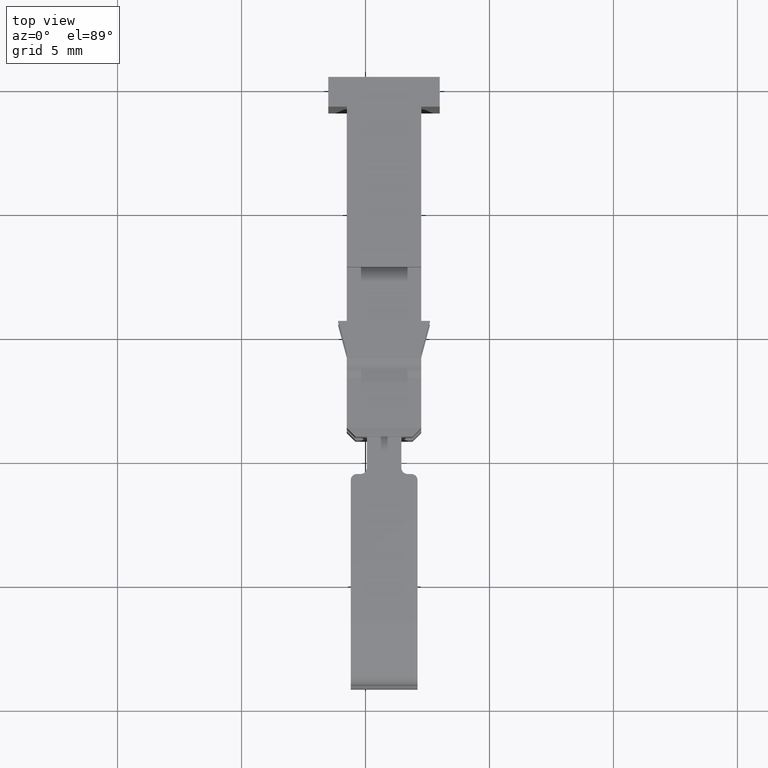
[diagram: clean part render]
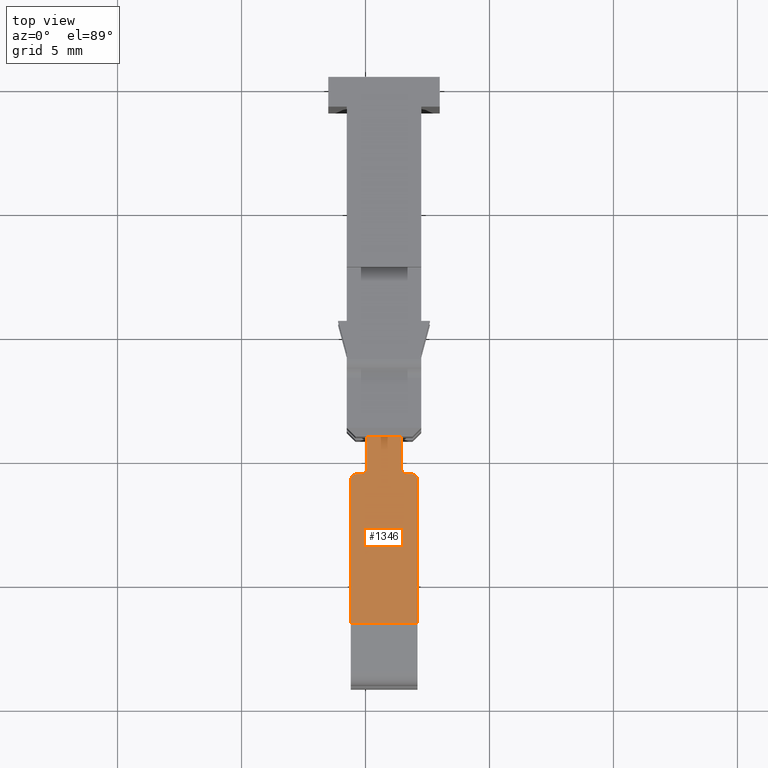
[diagram: same view with one face highlighted and labeled with its STEP entity id]
A machine part, top view. The second image highlights one B-rep face of the part: STEP entity #1346.
In plain terms, the highlighted planar face has unit normal (0, 0, -1).
Its self-contained STEP definition (entity closure, byte-faithful):
#508 = PLANE ( 'NONE',  #1826 ) ;
#550 = FACE_OUTER_BOUND ( 'NONE', #2169, .T. ) ;
#567 = CARTESIAN_POINT ( 'NONE',  ( 110.0552529172779500, 248.6101602476015000, 170.7398226793859800 ) ) ;
#589 = DIRECTION ( 'NONE',  ( 7.193572994223691600E-015, 1.504573015594193100E-014, -1.000000000000000000 ) ) ;
#590 = DIRECTION ( 'NONE',  ( 0.0000000000000000000, 1.000000000000000000, 1.504573015594193100E-014 ) ) ;
#910 = CARTESIAN_POINT ( 'NONE',  ( 111.4452529172782500, 244.5815789080036500, 170.7398226793859200 ) ) ;
#927 = CARTESIAN_POINT ( 'NONE',  ( 109.8052529172787800, 244.3315789080035100, 170.7398226793859200 ) ) ;
#931 = CARTESIAN_POINT ( 'NONE',  ( 111.6952529172784100, 244.3315789080036500, 170.7398226793859200 ) ) ;
#932 = CARTESIAN_POINT ( 'NONE',  ( 109.4024523974269600, 238.3134866759716000, 170.7398226793860100 ) ) ;
#935 = CARTESIAN_POINT ( 'NONE',  ( 111.4452529172780700, 245.8315789080019700, 170.7398226793859200 ) ) ;
#939 = CARTESIAN_POINT ( 'NONE',  ( 109.6524523974264700, 244.3315789080035100, 170.7398226793859500 ) ) ;
#942 = CARTESIAN_POINT ( 'NONE',  ( 110.0552529172784100, 245.8315789080019200, 170.7398226793859200 ) ) ;
#944 = CARTESIAN_POINT ( 'NONE',  ( 111.8480534371294700, 244.3315789080036500, 170.7398226793859200 ) ) ;
#945 = CARTESIAN_POINT ( 'NONE',  ( 112.0980534371292800, 238.3134866759713500, 170.7398226793860100 ) ) ;
#947 = CARTESIAN_POINT ( 'NONE',  ( 110.0552529172787200, 244.5815789080035100, 170.7398226793859200 ) ) ;
#949 = CARTESIAN_POINT ( 'NONE',  ( 109.4024523974264700, 244.0815789080034800, 170.7398226793859800 ) ) ;
#955 = CARTESIAN_POINT ( 'NONE',  ( 112.0980534371294700, 244.0815789080036500, 170.7398226793859200 ) ) ;
#1031 = LINE ( 'NONE', #1071, #1588 ) ;
#1053 = DIRECTION ( 'NONE',  ( 0.0000000000000000000, 1.000000000000000000, 1.504573015594193100E-014 ) ) ;
#1071 = CARTESIAN_POINT ( 'NONE',  ( 110.0552529172786400, 248.6101602476015000, 170.7398226793859800 ) ) ;
#1089 = EDGE_CURVE ( 'NONE', #2567, #2569, #1500, .T. ) ;
#1090 = EDGE_CURVE ( 'NONE', #2553, #2580, #1503, .T. ) ;
#1103 = EDGE_CURVE ( 'NONE', #2575, #2543, #1541, .T. ) ;
#1108 = EDGE_CURVE ( 'NONE', #2572, #2580, #2351, .T. ) ;
#1111 = EDGE_CURVE ( 'NONE', #2574, #2572, #2359, .T. ) ;
#1112 = EDGE_CURVE ( 'NONE', #2569, #2553, #2383, .T. ) ;
#1113 = EDGE_CURVE ( 'NONE', #2543, #2547, #2353, .T. ) ;
#1127 = EDGE_CURVE ( 'NONE', #2548, #2546, #2396, .T. ) ;
#1133 = EDGE_CURVE ( 'NONE', #2547, #2549, #1528, .T. ) ;
#1135 = EDGE_CURVE ( 'NONE', #2575, #2574, #2440, .T. ) ;
#1160 = EDGE_CURVE ( 'NONE', #2546, #2567, #2496, .T. ) ;
#1168 = EDGE_CURVE ( 'NONE', #2549, #2548, #1031, .T. ) ;
#1346 = ADVANCED_FACE ( 'NONE', ( #550 ), #508, .F. ) ;
#1500 = CIRCLE ( 'NONE', #1502, 0.2500000000000002200 ) ;
#1502 = AXIS2_PLACEMENT_3D ( 'NONE', #2300, #2319, #2307 ) ;
#1503 = CIRCLE ( 'NONE', #1521, 0.2500000000000002200 ) ;
#1510 = AXIS2_PLACEMENT_3D ( 'NONE', #2410, #2411, #2412 ) ;
#1512 = VECTOR ( 'NONE', #2388, 1000.000000000000000 ) ;
#1517 = VECTOR ( 'NONE', #2382, 1000.000000000000000 ) ;
#1521 = AXIS2_PLACEMENT_3D ( 'NONE', #2310, #2322, #2335 ) ;
#1528 = CIRCLE ( 'NONE', #1510, 0.2500000000000002200 ) ;
#1531 = VECTOR ( 'NONE', #2444, 1000.000000000000000 ) ;
#1532 = VECTOR ( 'NONE', #2394, 1000.000000000000000 ) ;
#1534 = VECTOR ( 'NONE', #2417, 1000.000000000000000 ) ;
#1541 = CIRCLE ( 'NONE', #1543, 0.2500000000000002200 ) ;
#1543 = AXIS2_PLACEMENT_3D ( 'NONE', #2332, #2338, #2339 ) ;
#1558 = VECTOR ( 'NONE', #2389, 1000.000000000000000 ) ;
#1575 = VECTOR ( 'NONE', #2517, 1000.000000000000000 ) ;
#1588 = VECTOR ( 'NONE', #1053, 1000.000000000000000 ) ;
#1826 = AXIS2_PLACEMENT_3D ( 'NONE', #567, #589, #590 ) ;
#2169 = EDGE_LOOP ( 'NONE', ( #2846, #2874, #2861, #2842, #2832, #2870, #2855, #2859, #2853, #2849, #2840, #2863 ) ) ;
#2300 = CARTESIAN_POINT ( 'NONE',  ( 111.6952529172784100, 244.5815789080036500, 170.7398226793859200 ) ) ;
#2307 = DIRECTION ( 'NONE',  ( -1.000000000000000000, 0.0000000000000000000, 0.0000000000000000000 ) ) ;
#2310 = CARTESIAN_POINT ( 'NONE',  ( 111.8480534371294700, 244.0815789080036500, 170.7398226793859500 ) ) ;
#2319 = DIRECTION ( 'NONE',  ( -7.193572994224081300E-015, 5.441398086520266300E-029, 1.000000000000000000 ) ) ;
#2322 = DIRECTION ( 'NONE',  ( 7.193572994222961100E-015, -5.441398086523228100E-029, -1.000000000000000000 ) ) ;
#2332 = CARTESIAN_POINT ( 'NONE',  ( 109.6524523974264700, 244.0815789080035100, 170.7398226793859800 ) ) ;
#2335 = DIRECTION ( 'NONE',  ( 1.000000000000000000, 0.0000000000000000000, 0.0000000000000000000 ) ) ;
#2338 = DIRECTION ( 'NONE',  ( 7.193572994225531200E-015, -5.441398086516434600E-029, -1.000000000000000000 ) ) ;
#2339 = DIRECTION ( 'NONE',  ( 1.000000000000000000, 0.0000000000000000000, 0.0000000000000000000 ) ) ;
#2350 = CARTESIAN_POINT ( 'NONE',  ( 110.0552529172779500, 244.3315789080036500, 170.7398226793859200 ) ) ;
#2351 = LINE ( 'NONE', #2380, #1517 ) ;
#2353 = LINE ( 'NONE', #2373, #1558 ) ;
#2354 = CARTESIAN_POINT ( 'NONE',  ( 100.4203046668917900, 238.3134866759713500, 170.7398226793859800 ) ) ;
#2359 = LINE ( 'NONE', #2354, #1532 ) ;
#2373 = CARTESIAN_POINT ( 'NONE',  ( 110.0552529172779500, 244.3315789080035100, 170.7398226793859200 ) ) ;
#2380 = CARTESIAN_POINT ( 'NONE',  ( 112.0980534371294900, 244.7827890380865500, 170.7398226793859000 ) ) ;
#2382 = DIRECTION ( 'NONE',  ( 3.142629004551421700E-014, 1.000000000000000000, -0.0000000000000000000 ) ) ;
#2383 = LINE ( 'NONE', #2350, #1512 ) ;
#2388 = DIRECTION ( 'NONE',  ( 1.000000000000000000, -1.082325581281608900E-028, 7.193572994223691600E-015 ) ) ;
#2389 = DIRECTION ( 'NONE',  ( 1.000000000000000000, -1.082325581281608900E-028, 7.193572994223691600E-015 ) ) ;
#2394 = DIRECTION ( 'NONE',  ( 1.000000000000000000, -4.330137321518562800E-016, 2.455742906799131200E-015 ) ) ;
#2396 = LINE ( 'NONE', #2439, #1534 ) ;
#2410 = CARTESIAN_POINT ( 'NONE',  ( 109.8052529172787800, 244.5815789080035100, 170.7398226793859200 ) ) ;
#2411 = DIRECTION ( 'NONE',  ( -7.193572994224081300E-015, 5.441398086520266300E-029, 1.000000000000000000 ) ) ;
#2412 = DIRECTION ( 'NONE',  ( 1.000000000000000000, 0.0000000000000000000, 0.0000000000000000000 ) ) ;
#2417 = DIRECTION ( 'NONE',  ( 1.000000000000000000, -1.082325581281608900E-028, 7.193572994223691600E-015 ) ) ;
#2439 = CARTESIAN_POINT ( 'NONE',  ( 110.0552529172779500, 245.8315789080019200, 170.7398226793859200 ) ) ;
#2440 = LINE ( 'NONE', #2448, #1531 ) ;
#2444 = DIRECTION ( 'NONE',  ( 8.429940185974501000E-014, -1.000000000000000000, -0.0000000000000000000 ) ) ;
#2448 = CARTESIAN_POINT ( 'NONE',  ( 109.4024523974264200, 244.7827890380865500, 170.7398226793859800 ) ) ;
#2491 = CARTESIAN_POINT ( 'NONE',  ( 111.4452529172780700, 248.6101602476015000, 170.7398226793859800 ) ) ;
#2496 = LINE ( 'NONE', #2491, #1575 ) ;
#2517 = DIRECTION ( 'NONE',  ( -0.0000000000000000000, -1.000000000000000000, -1.504573015594193100E-014 ) ) ;
#2543 = VERTEX_POINT ( 'NONE', #939 ) ;
#2546 = VERTEX_POINT ( 'NONE', #935 ) ;
#2547 = VERTEX_POINT ( 'NONE', #927 ) ;
#2548 = VERTEX_POINT ( 'NONE', #942 ) ;
#2549 = VERTEX_POINT ( 'NONE', #947 ) ;
#2553 = VERTEX_POINT ( 'NONE', #944 ) ;
#2567 = VERTEX_POINT ( 'NONE', #910 ) ;
#2569 = VERTEX_POINT ( 'NONE', #931 ) ;
#2572 = VERTEX_POINT ( 'NONE', #945 ) ;
#2574 = VERTEX_POINT ( 'NONE', #932 ) ;
#2575 = VERTEX_POINT ( 'NONE', #949 ) ;
#2580 = VERTEX_POINT ( 'NONE', #955 ) ;
#2832 = ORIENTED_EDGE ( 'NONE', *, *, #1133, .F. ) ;
#2840 = ORIENTED_EDGE ( 'NONE', *, *, #1090, .F. ) ;
#2842 = ORIENTED_EDGE ( 'NONE', *, *, #1168, .F. ) ;
#2846 = ORIENTED_EDGE ( 'NONE', *, *, #1089, .F. ) ;
#2849 = ORIENTED_EDGE ( 'NONE', *, *, #1108, .T. ) ;
#2853 = ORIENTED_EDGE ( 'NONE', *, *, #1111, .T. ) ;
#2855 = ORIENTED_EDGE ( 'NONE', *, *, #1103, .F. ) ;
#2859 = ORIENTED_EDGE ( 'NONE', *, *, #1135, .T. ) ;
#2861 = ORIENTED_EDGE ( 'NONE', *, *, #1127, .F. ) ;
#2863 = ORIENTED_EDGE ( 'NONE', *, *, #1112, .F. ) ;
#2870 = ORIENTED_EDGE ( 'NONE', *, *, #1113, .F. ) ;
#2874 = ORIENTED_EDGE ( 'NONE', *, *, #1160, .F. ) ;